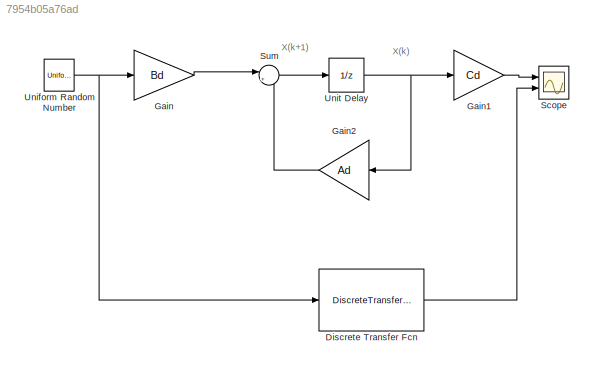
MODEL slx_7954b05a76ad
KIND model
BLOCK [DiscreteTransferFcn] Discrete Transfer Fcn
  Denominator = [1 -1.753 0.8187]
  InputPortMap = u0
  Numerator = [0.02909 0.02721]
  Ports = [1, 1]
  SampleTime = 1
BLOCK [Gain] Gain
  Gain = Bd
  Multiplication = Matrix(K*u)
  OutDataTypeStr = Inherit: Inherit via internal rule
  ParamDataTypeStr = Inherit: Inherit via internal rule
  SaturateOnIntegerOverflow = off
BLOCK [Gain] Gain1
  Gain = Cd
  Multiplication = Matrix(K*u)
  OutDataTypeStr = Inherit: Inherit via internal rule
  ParamDataTypeStr = Inherit: Inherit via internal rule
  SaturateOnIntegerOverflow = off
BLOCK [Gain] Gain2
  Gain = Ad
  Multiplication = Matrix(K*u)
  OutDataTypeStr = Inherit: Inherit via internal rule
  ParamDataTypeStr = Inherit: Inherit via internal rule
  SaturateOnIntegerOverflow = off
BLOCK [Scope] Scope
  Floating = off
  NumInputPorts = 2
  Ports = [2]
  ShowLegends = off
  YMax = 5~5
  YMin = -5~-5
BLOCK [Sum] Sum
  IconShape = round
  InputSameDT = off
  Inputs = |++
  OutDataTypeStr = Inherit: Inherit via internal rule
  Ports = [2, 1]
  SaturateOnIntegerOverflow = off
BLOCK [UniformRandomNumber] Uniform Random Number
  Maximum = 5
  Minimum = 0
  SampleTime = 50
BLOCK [UnitDelay] Unit Delay
  InputProcessing = Elements as channels (sample based)
ANNOTATION (root): X(k)
ANNOTATION (root): X(k+1)
LINE Discrete Transfer Fcn:1 -> Scope:2
LINE Gain1:1 -> Scope:1
LINE Gain2:1 -> Sum:2
LINE Gain:1 -> Sum:1
LINE Sum:1 -> Unit Delay:1
NET Uniform Random Number:1 -> Discrete Transfer Fcn:1, Gain:1
NET Unit Delay:1 -> Gain1:1, Gain2:1
note: NET lines group one-source signal fan-out (src -> all destinations, sorted); 1:1 wires keep LINE
